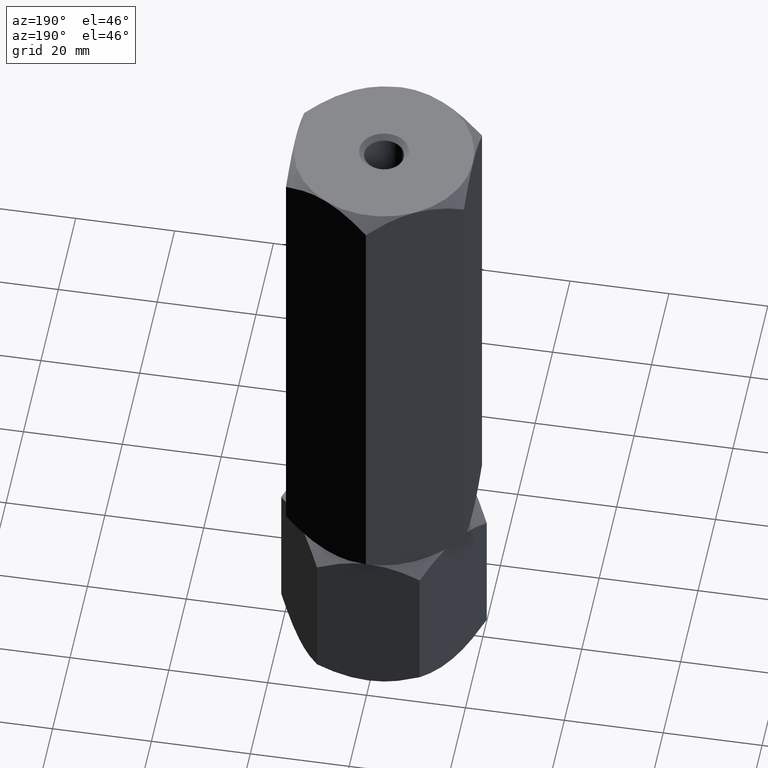
[diagram: clean part render]
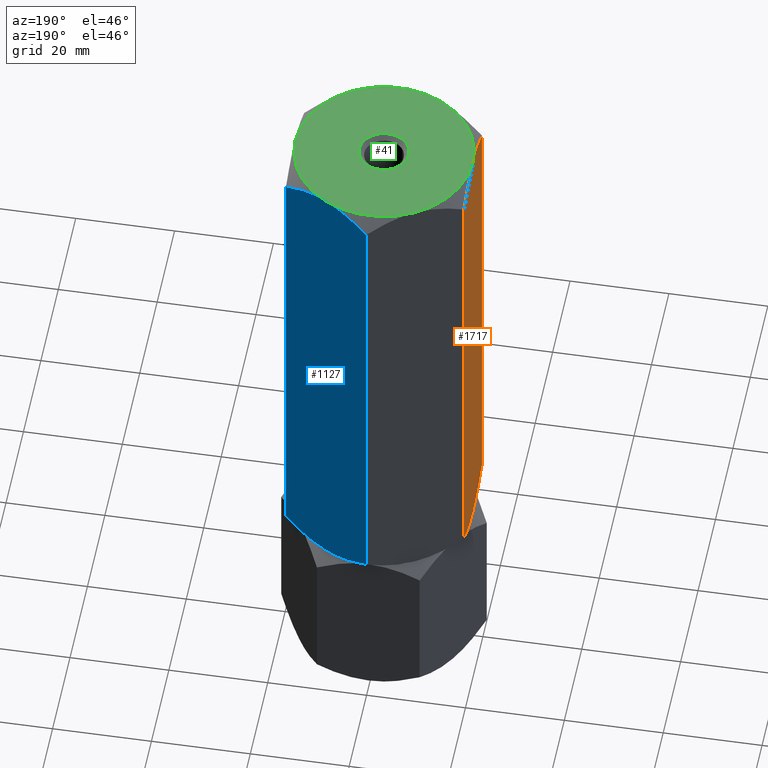
[diagram: same view with three faces highlighted in distinct colors, each labeled with its STEP entity id]
A machine part, auxiliary view with three faces highlighted in distinct colors.
Their STEP definitions:

[orange] entity #1717 — the highlighted planar face has unit normal (1, 0, -0).
#125 = FACE_OUTER_BOUND ( 'NONE', #1211, .T. ) ;
#163 = VERTEX_POINT ( 'NONE', #1197 ) ;
#224 = CARTESIAN_POINT ( 'NONE',  ( -18.00000000000000355, 10.39230484541327293, 130.5487236425067863 ) ) ;
#323 = ORIENTED_EDGE ( 'NONE', *, *, #771, .T. ) ;
#339 = CARTESIAN_POINT ( 'NONE',  ( -18.00000000000000711, -7.082707117959917476, 34.66128091149798252 ) ) ;
#425 = ORIENTED_EDGE ( 'NONE', *, *, #1598, .F. ) ;
#438 = VECTOR ( 'NONE', #577, 1000.000000000000000 ) ;
#452 = CARTESIAN_POINT ( 'NONE',  ( -18.00000000000000711, -6.223496946123841411, 132.2920538615294390 ) ) ;
#495 = CARTESIAN_POINT ( 'NONE',  ( -18.00000000000000355, -10.39230484541325872, 36.11794302415981406 ) ) ;
#521 = VERTEX_POINT ( 'NONE', #1832 ) ;
#570 = CARTESIAN_POINT ( 'NONE',  ( -18.00000000000000355, 8.778074610959544444, 35.31082790693295692 ) ) ;
#577 = DIRECTION ( 'NONE',  ( -0.000000000000000000, -0.000000000000000000, -1.000000000000000000 ) ) ;
#591 = ORIENTED_EDGE ( 'NONE', *, *, #673, .F. ) ;
#622 = DIRECTION ( 'NONE',  ( -0.000000000000000000, -0.000000000000000000, -1.000000000000000000 ) ) ;
#629 = CARTESIAN_POINT ( 'NONE',  ( -18.00000000000000711, -0.9043953770119721458, 33.35033129737433910 ) ) ;
#650 = LINE ( 'NONE', #784, #1639 ) ;
#673 = EDGE_CURVE ( 'NONE', #1443, #1810, #679, .T. ) ;
#677 = B_SPLINE_CURVE_WITH_KNOTS ( 'NONE', 3,
 ( #925, #1887, #1559, #2021, #2042, #1274, #1108, #1862, #452, #947, #1591, #1727, #1100, #2054 ),
 .UNSPECIFIED., .F., .F.,
 ( 4, 2, 2, 2, 2, 2, 4 ),
 ( 0.1384677957239335566, 0.1397979318438594964, 0.1411280679637854085, 0.1437883402036372604, 0.1451184763235632003, 0.1464486124434891123, 0.1491088846833409920 ),
 .UNSPECIFIED. ) ;
#679 = B_SPLINE_CURVE_WITH_KNOTS ( 'NONE', 3,
 ( #1712, #1723, #906, #918, #570, #1058 ),
 .UNSPECIFIED., .F., .F.,
 ( 4, 2, 4 ),
 ( 0.1107820986329206697, 0.1159835759449454468, 0.1211850532569702238 ),
 .UNSPECIFIED. ) ;
#699 = CARTESIAN_POINT ( 'NONE',  ( -18.00000000000000355, 4.475081985729232770, 132.8044625281006006 ) ) ;
#730 = B_SPLINE_CURVE_WITH_KNOTS ( 'NONE', 3,
 ( #495, #970, #1125, #1773, #2046, #339, #983, #1625, #795, #1594, #818, #629, #1280, #1911 ),
 .UNSPECIFIED., .F., .F.,
 ( 4, 2, 2, 2, 2, 2, 4 ),
 ( 0.1004087599824664279, 0.1017054273137732029, 0.1030020946450799918, 0.1055954293076935557, 0.1081887639703071058, 0.1094854313016138947, 0.1107820986329206697 ),
 .UNSPECIFIED. ) ;
#737 = PLANE ( 'NONE',  #1483 ) ;
#749 = CARTESIAN_POINT ( 'NONE',  ( -18.00000000000000355, 10.39230484541327293, 133.3333333333333144 ) ) ;
#771 = EDGE_CURVE ( 'NONE', #163, #1810, #650, .T. ) ;
#784 = CARTESIAN_POINT ( 'NONE',  ( -18.00000000000000355, 10.39230484541327293, 133.3333333333333144 ) ) ;
#795 = CARTESIAN_POINT ( 'NONE',  ( -18.00000000000000355, -3.613967831719413937, 33.67110738872835185 ) ) ;
#818 = CARTESIAN_POINT ( 'NONE',  ( -18.00000000000000355, -1.814095138421053077, 33.41883099885364317 ) ) ;
#855 = EDGE_CURVE ( 'NONE', #521, #1443, #730, .T. ) ;
#861 = CARTESIAN_POINT ( 'NONE',  ( -18.00000000000000711, 7.107311090567371537, 132.0542086361348879 ) ) ;
#880 = LINE ( 'NONE', #1203, #438 ) ;
#906 = CARTESIAN_POINT ( 'NONE',  ( -18.00000000000000711, 3.592318780390954647, 33.61070979931490399 ) ) ;
#918 = CARTESIAN_POINT ( 'NONE',  ( -18.00000000000000000, 7.109965447143206774, 34.61309850096016305 ) ) ;
#922 = DIRECTION ( 'NONE',  ( 1.000000000000000000, 0.000000000000000000, -0.000000000000000000 ) ) ;
#925 = CARTESIAN_POINT ( 'NONE',  ( -18.00000000000000000, 0.000000000000000000, 133.3333333333333144 ) ) ;
#947 = CARTESIAN_POINT ( 'NONE',  ( -17.99999999999999645, -7.080606646322093134, 131.9949414621132746 ) ) ;
#970 = CARTESIAN_POINT ( 'NONE',  ( -18.00000000000000355, -9.992749120313195732, 35.91816516160979234 ) ) ;
#983 = CARTESIAN_POINT ( 'NONE',  ( -18.00000000000000355, -6.228990999673021278, 34.36251136990549782 ) ) ;
#987 = B_SPLINE_CURVE_WITH_KNOTS ( 'NONE', 3,
 ( #224, #1068, #861, #699, #1196, #1357, #1525, #1679 ),
 .UNSPECIFIED., .F., .F.,
 ( 4, 2, 2, 4 ),
 ( 0.1278099879825815854, 0.1331388918532575572, 0.1358033437885955708, 0.1384677957239335566 ),
 .UNSPECIFIED. ) ;
#1058 = CARTESIAN_POINT ( 'NONE',  ( -18.00000000000000355, 10.39230484541327293, 36.11794302415982116 ) ) ;
#1068 = CARTESIAN_POINT ( 'NONE',  ( -18.00000000000000711, 8.774731520318134415, 131.3575103050543760 ) ) ;
#1100 = CARTESIAN_POINT ( 'NONE',  ( -18.00000000000000355, -9.589039146339997544, 130.9503564920434258 ) ) ;
#1108 = CARTESIAN_POINT ( 'NONE',  ( -18.00000000000000355, -4.489815314339048236, 132.8005018324903119 ) ) ;
#1125 = CARTESIAN_POINT ( 'NONE',  ( -18.00000000000000711, -9.587949197936595169, 35.72437761027130421 ) ) ;
#1141 = VERTEX_POINT ( 'NONE', #1499 ) ;
#1177 = ORIENTED_EDGE ( 'NONE', *, *, #1301, .F. ) ;
#1196 = CARTESIAN_POINT ( 'NONE',  ( -18.00000000000000711, 3.589319173232453863, 133.0001577798414019 ) ) ;
#1197 = CARTESIAN_POINT ( 'NONE',  ( -18.00000000000000355, 10.39230484541327293, 130.5487236425067863 ) ) ;
#1203 = CARTESIAN_POINT ( 'NONE',  ( -18.00000000000000355, -10.39230484541325872, 133.3333333333333144 ) ) ;
#1211 = EDGE_LOOP ( 'NONE', ( #1177, #323, #591, #1240, #1330, #425 ) ) ;
#1240 = ORIENTED_EDGE ( 'NONE', *, *, #855, .F. ) ;
#1242 = DIRECTION ( 'NONE',  ( -0.000000000000000000, 0.000000000000000000, -1.000000000000000000 ) ) ;
#1274 = CARTESIAN_POINT ( 'NONE',  ( -18.00000000000001066, -3.609709903701545208, 132.9962641319732768 ) ) ;
#1280 = CARTESIAN_POINT ( 'NONE',  ( -18.00000000000000711, -0.4513223419669447067, 33.33333333333329307 ) ) ;
#1301 = EDGE_CURVE ( 'NONE', #163, #1141, #987, .T. ) ;
#1330 = ORIENTED_EDGE ( 'NONE', *, *, #1529, .F. ) ;
#1357 = CARTESIAN_POINT ( 'NONE',  ( -18.00000000000000711, 1.805664286422173692, 133.2645055555531428 ) ) ;
#1443 = VERTEX_POINT ( 'NONE', #1476 ) ;
#1476 = CARTESIAN_POINT ( 'NONE',  ( -18.00000000000000355, 0.000000000000000000, 33.33333333333330017 ) ) ;
#1483 = AXIS2_PLACEMENT_3D ( 'NONE', #749, #922, #1242 ) ;
#1499 = CARTESIAN_POINT ( 'NONE',  ( -18.00000000000000000, 0.000000000000000000, 133.3333333333333144 ) ) ;
#1525 = CARTESIAN_POINT ( 'NONE',  ( -18.00000000000001066, 0.9067060642462314579, 133.3333333333333428 ) ) ;
#1529 = EDGE_CURVE ( 'NONE', #1735, #521, #880, .T. ) ;
#1556 = CARTESIAN_POINT ( 'NONE',  ( -18.00000000000000711, -10.39230484541325694, 130.5487236425067863 ) ) ;
#1559 = CARTESIAN_POINT ( 'NONE',  ( -18.00000000000000355, -0.9087126234396247781, 133.3161085293293411 ) ) ;
#1591 = CARTESIAN_POINT ( 'NONE',  ( -18.00000000000000355, -7.507490410494521704, 131.8342518833695181 ) ) ;
#1594 = CARTESIAN_POINT ( 'NONE',  ( -18.00000000000000711, -2.268365306453394847, 33.47027849005760913 ) ) ;
#1598 = EDGE_CURVE ( 'NONE', #1141, #1735, #677, .T. ) ;
#1601 = CARTESIAN_POINT ( 'NONE',  ( -18.00000000000000355, 10.39230484541327293, 36.11794302415982116 ) ) ;
#1625 = CARTESIAN_POINT ( 'NONE',  ( -18.00000000000000711, -4.494632227792643597, 33.86738326141610855 ) ) ;
#1639 = VECTOR ( 'NONE', #622, 1000.000000000000000 ) ;
#1679 = CARTESIAN_POINT ( 'NONE',  ( -18.00000000000000000, 0.000000000000000000, 133.3333333333333144 ) ) ;
#1712 = CARTESIAN_POINT ( 'NONE',  ( -18.00000000000000355, 0.000000000000000000, 33.33333333333330017 ) ) ;
#1717 = ADVANCED_FACE ( 'NONE', ( #125 ), #737, .F. ) ;
#1723 = CARTESIAN_POINT ( 'NONE',  ( -18.00000000000000355, 1.810443484980108986, 33.33333333333329307 ) ) ;
#1727 = CARTESIAN_POINT ( 'NONE',  ( -18.00000000000000355, -8.769604937885725704, 131.3255090817757207 ) ) ;
#1735 = VERTEX_POINT ( 'NONE', #1556 ) ;
#1773 = CARTESIAN_POINT ( 'NONE',  ( -18.00000000000000000, -8.765915541430075564, 35.35100532987971889 ) ) ;
#1810 = VERTEX_POINT ( 'NONE', #1601 ) ;
#1832 = CARTESIAN_POINT ( 'NONE',  ( -18.00000000000000355, -10.39230484541325872, 36.11794302415981406 ) ) ;
#1862 = CARTESIAN_POINT ( 'NONE',  ( -18.00000000000000711, -5.792286176018565769, 132.4289044973347131 ) ) ;
#1887 = CARTESIAN_POINT ( 'NONE',  ( -18.00000000000000355, -0.4526418623711488953, 133.3333333333333144 ) ) ;
#1911 = CARTESIAN_POINT ( 'NONE',  ( -18.00000000000000355, 0.000000000000000000, 33.33333333333330017 ) ) ;
#2021 = CARTESIAN_POINT ( 'NONE',  ( -18.00000000000000000, -1.817661187389374655, 133.2474680458177829 ) ) ;
#2042 = CARTESIAN_POINT ( 'NONE',  ( -18.00000000000000711, -2.268326247884222990, 133.1963592391387579 ) ) ;
#2046 = CARTESIAN_POINT ( 'NONE',  ( -18.00000000000000355, -8.347141026087349758, 35.17082227915909698 ) ) ;
#2054 = CARTESIAN_POINT ( 'NONE',  ( -18.00000000000000711, -10.39230484541325694, 130.5487236425067863 ) ) ;

[blue] entity #1127 — the highlighted planar face has unit normal (-0.5, -0.866, 0).
#25 = CARTESIAN_POINT ( 'NONE',  ( 18.00000000000000000, 10.39230484541326760, 133.3333333333333144 ) ) ;
#33 = CARTESIAN_POINT ( 'NONE',  ( 8.605874323383771340, 15.81600583360882517, 33.33333333333330017 ) ) ;
#34 = DIRECTION ( 'NONE',  ( -0.5000000000000001110, -0.8660254037844387076, 0.000000000000000000 ) ) ;
#42 = CARTESIAN_POINT ( 'NONE',  ( 8.209538469370123437, 16.04483044561310123, 33.35066618980737019 ) ) ;
#51 = CARTESIAN_POINT ( 'NONE',  ( 5.097327296964724752, 17.84166640377631907, 33.87041888916230903 ) ) ;
#60 = ORIENTED_EDGE ( 'NONE', *, *, #2055, .F. ) ;
#160 = CARTESIAN_POINT ( 'NONE',  ( 7.434539168300460688, 16.49227650070744033, 133.3333333333333144 ) ) ;
#177 = CARTESIAN_POINT ( 'NONE',  ( 18.00000000000000000, 10.39230484541326760, 133.3333333333333144 ) ) ;
#218 = CARTESIAN_POINT ( 'NONE',  ( 7.415748492146454929, 16.50312530264320898, 33.42028022345144933 ) ) ;
#249 = CARTESIAN_POINT ( 'NONE',  ( 9.000000000000000000, 15.58845726811989252, 133.3333333333333144 ) ) ;
#261 = B_SPLINE_CURVE_WITH_KNOTS ( 'NONE', 3,
 ( #662, #1311, #1944, #380, #1026, #1659 ),
 .UNSPECIFIED., .F., .F.,
 ( 4, 2, 4 ),
 ( 0.01077282027732747414, 0.01612137750481873813, 0.02146993473231000038 ),
 .UNSPECIFIED. ) ;
#380 = CARTESIAN_POINT ( 'NONE',  ( 15.13928418966203360, 12.04393988858690712, 34.60590803483753319 ) ) ;
#384 = CARTESIAN_POINT ( 'NONE',  ( 9.790461530629878339, 15.13208409062669269, 133.3160004768592160 ) ) ;
#391 = CARTESIAN_POINT ( 'NONE',  ( -1.925929944387235853E-30, 20.78460969082653165, 133.3333333333333144 ) ) ;
#407 = CARTESIAN_POINT ( 'NONE',  ( 12.14199022028320485, 13.77442836864822162, 132.9927702310780546 ) ) ;
#420 = VERTEX_POINT ( 'NONE', #750 ) ;
#479 = CARTESIAN_POINT ( 'NONE',  ( 2.860715810337968179, 19.13297464765287614, 132.0607586318291169 ) ) ;
#526 = EDGE_CURVE ( 'NONE', #1262, #804, #966, .T. ) ;
#530 = CARTESIAN_POINT ( 'NONE',  ( 10.58425150785354774, 14.67378923359657961, 133.2463864432151013 ) ) ;
#535 = VERTEX_POINT ( 'NONE', #975 ) ;
#618 = EDGE_CURVE ( 'NONE', #535, #420, #261, .T. ) ;
#662 = CARTESIAN_POINT ( 'NONE',  ( 9.000000000000001776, 15.58845726811989607, 33.33333333333330017 ) ) ;
#691 = CARTESIAN_POINT ( 'NONE',  ( 8.283054731729360895E-16, 20.78460969082653165, 36.11794302415982116 ) ) ;
#694 = ORIENTED_EDGE ( 'NONE', *, *, #526, .F. ) ;
#750 = CARTESIAN_POINT ( 'NONE',  ( 18.00000000000000000, 10.39230484541326760, 36.11794302415981406 ) ) ;
#751 = ORIENTED_EDGE ( 'NONE', *, *, #790, .T. ) ;
#790 = EDGE_CURVE ( 'NONE', #1430, #420, #962, .T. ) ;
#792 = ORIENTED_EDGE ( 'NONE', *, *, #1946, .F. ) ;
#804 = VERTEX_POINT ( 'NONE', #1898 ) ;
#807 = B_SPLINE_CURVE_WITH_KNOTS ( 'NONE', 3,
 ( #1342, #1970, #1812, #1981, #407, #1488, #530, #384, #1372, #249 ),
 .UNSPECIFIED., .F., .F.,
 ( 4, 2, 2, 2, 4 ),
 ( 2.544307986816325776E-07, 0.005386537354063073400, 0.008079678815695268135, 0.009426249546511368538, 0.01077282027732746721 ),
 .UNSPECIFIED. ) ;
#811 = DIRECTION ( 'NONE',  ( -0.000000000000000000, -0.000000000000000000, -1.000000000000000000 ) ) ;
#816 = DIRECTION ( 'NONE',  ( 0.8660254037844385966, -0.5000000000000000000, 0.000000000000000000 ) ) ;
#823 = CARTESIAN_POINT ( 'NONE',  ( 9.000000000000001776, 15.58845726811989607, 33.33333333333330017 ) ) ;
#840 = ORIENTED_EDGE ( 'NONE', *, *, #1665, .F. ) ;
#847 = FACE_OUTER_BOUND ( 'NONE', #1128, .T. ) ;
#957 = CARTESIAN_POINT ( 'NONE',  ( 5.895697476400526327, 17.38072716576608912, 133.0569374262117321 ) ) ;
#962 = LINE ( 'NONE', #177, #2031 ) ;
#966 = LINE ( 'NONE', #391, #1079 ) ;
#975 = CARTESIAN_POINT ( 'NONE',  ( 9.000000000000001776, 15.58845726811989607, 33.33333333333330017 ) ) ;
#1009 = CARTESIAN_POINT ( 'NONE',  ( 2.854601888853812941, 19.13650452186757178, 34.61071641122317288 ) ) ;
#1026 = CARTESIAN_POINT ( 'NONE',  ( 16.59030399953601531, 11.20619321075668751, 35.30405465881634797 ) ) ;
#1079 = VECTOR ( 'NONE', #1606, 1000.000000000000000 ) ;
#1127 = ADVANCED_FACE ( 'NONE', ( #847 ), #1973, .F. ) ;
#1128 = EDGE_LOOP ( 'NONE', ( #840, #751, #1533, #792, #694, #60 ) ) ;
#1262 = VERTEX_POINT ( 'NONE', #1366 ) ;
#1293 = CARTESIAN_POINT ( 'NONE',  ( 2.023902932232340556E-15, 20.78460969082653165, 130.5487236425067863 ) ) ;
#1311 = CARTESIAN_POINT ( 'NONE',  ( 10.56546083169953754, 14.68463803553235181, 33.33333333333330017 ) ) ;
#1342 = CARTESIAN_POINT ( 'NONE',  ( 18.00000000000000355, 10.39230484541326582, 130.5487236425067863 ) ) ;
#1345 = CARTESIAN_POINT ( 'NONE',  ( 1.411330396252046038, 19.96977770663491469, 35.30311103996820066 ) ) ;
#1366 = CARTESIAN_POINT ( 'NONE',  ( 2.023902932232340556E-15, 20.78460969082653165, 130.5487236425067863 ) ) ;
#1372 = CARTESIAN_POINT ( 'NONE',  ( 9.394125676616232212, 15.36090870263097052, 133.3333333333332860 ) ) ;
#1408 = CARTESIAN_POINT ( 'NONE',  ( 9.000000000000000000, 15.58845726811989252, 133.3333333333333144 ) ) ;
#1430 = VERTEX_POINT ( 'NONE', #1561 ) ;
#1454 = CARTESIAN_POINT ( 'NONE',  ( 1.409696000463994014, 19.97072132548310464, 131.3626120078502595 ) ) ;
#1488 = CARTESIAN_POINT ( 'NONE',  ( 10.97671975407795841, 14.44719758599053705, 133.1946107342347148 ) ) ;
#1533 = ORIENTED_EDGE ( 'NONE', *, *, #618, .F. ) ;
#1561 = CARTESIAN_POINT ( 'NONE',  ( 18.00000000000000355, 10.39230484541326582, 130.5487236425067863 ) ) ;
#1606 = DIRECTION ( 'NONE',  ( -0.000000000000000000, -0.000000000000000000, -1.000000000000000000 ) ) ;
#1654 = CARTESIAN_POINT ( 'NONE',  ( 5.858009779716801368, 17.40248616759157585, 33.67389643558856704 ) ) ;
#1659 = CARTESIAN_POINT ( 'NONE',  ( 18.00000000000000000, 10.39230484541326760, 36.11794302415981406 ) ) ;
#1665 = EDGE_CURVE ( 'NONE', #1430, #1899, #807, .T. ) ;
#1812 = CARTESIAN_POINT ( 'NONE',  ( 15.14539811114619106, 12.04041001437222569, 132.0559502554434346 ) ) ;
#1872 = AXIS2_PLACEMENT_3D ( 'NONE', #25, #34, #816 ) ;
#1898 = CARTESIAN_POINT ( 'NONE',  ( 8.283054731729360895E-16, 20.78460969082653165, 36.11794302415982116 ) ) ;
#1899 = VERTEX_POINT ( 'NONE', #1408 ) ;
#1902 = CARTESIAN_POINT ( 'NONE',  ( 9.000000000000000000, 15.58845726811989252, 133.3333333333333144 ) ) ;
#1932 = B_SPLINE_CURVE_WITH_KNOTS ( 'NONE', 3,
 ( #691, #1345, #1009, #51, #1654, #1945, #218, #42, #33, #823 ),
 .UNSPECIFIED., .F., .F.,
 ( 4, 2, 2, 2, 4 ),
 ( 2.544307986820942635E-07, 0.005386537354063077737, 0.008079678815695275074, 0.009426249546511375477, 0.01077282027732747414 ),
 .UNSPECIFIED. ) ;
#1944 = CARTESIAN_POINT ( 'NONE',  ( 12.10430252359948256, 13.79618737047370303, 33.60972924045488952 ) ) ;
#1945 = CARTESIAN_POINT ( 'NONE',  ( 7.023280245922047804, 16.72971695024925154, 33.47205593243187138 ) ) ;
#1946 = EDGE_CURVE ( 'NONE', #804, #535, #1932, .T. ) ;
#1970 = CARTESIAN_POINT ( 'NONE',  ( 16.58866960374796307, 11.20713682960488278, 131.3635556266983428 ) ) ;
#1973 = PLANE ( 'NONE',  #1872 ) ;
#1981 = CARTESIAN_POINT ( 'NONE',  ( 12.90267270303528235, 13.33524813246347129, 132.7962477775042771 ) ) ;
#2031 = VECTOR ( 'NONE', #811, 1000.000000000000000 ) ;
#2048 = B_SPLINE_CURVE_WITH_KNOTS ( 'NONE', 3,
 ( #1902, #160, #957, #479, #1454, #1293 ),
 .UNSPECIFIED., .F., .F.,
 ( 4, 2, 4 ),
 ( 0.01077282027732746721, 0.01612137750481873119, 0.02146993473230999344 ),
 .UNSPECIFIED. ) ;
#2055 = EDGE_CURVE ( 'NONE', #1899, #1262, #2048, .T. ) ;

[green] entity #41 — the highlighted planar face has unit normal (0, 0, 1).
#40 = ORIENTED_EDGE ( 'NONE', *, *, #1962, .T. ) ;
#41 = ADVANCED_FACE ( 'NONE', ( #496, #47 ), #1950, .T. ) ;
#47 = FACE_OUTER_BOUND ( 'NONE', #292, .T. ) ;
#75 = DIRECTION ( 'NONE',  ( 1.000000000000000000, 0.000000000000000000, 0.000000000000000000 ) ) ;
#146 = CARTESIAN_POINT ( 'NONE',  ( -4.999999999999990230, 6.123233995736754449E-16, 133.3333333333333144 ) ) ;
#157 = ORIENTED_EDGE ( 'NONE', *, *, #2013, .T. ) ;
#172 = AXIS2_PLACEMENT_3D ( 'NONE', #826, #366, #1326 ) ;
#183 = DIRECTION ( 'NONE',  ( -0.000000000000000000, -0.000000000000000000, -1.000000000000000000 ) ) ;
#205 = CIRCLE ( 'NONE', #701, 18.00000000000000000 ) ;
#206 = VERTEX_POINT ( 'NONE', #1579 ) ;
#235 = CIRCLE ( 'NONE', #403, 18.00000000000000000 ) ;
#242 = VERTEX_POINT ( 'NONE', #917 ) ;
#292 = EDGE_LOOP ( 'NONE', ( #157, #447, #710, #40, #392, #1834 ) ) ;
#319 = DIRECTION ( 'NONE',  ( 0.000000000000000000, 0.000000000000000000, 1.000000000000000000 ) ) ;
#335 = AXIS2_PLACEMENT_3D ( 'NONE', #1819, #348, #1023 ) ;
#348 = DIRECTION ( 'NONE',  ( 0.000000000000000000, 0.000000000000000000, 1.000000000000000000 ) ) ;
#363 = CIRCLE ( 'NONE', #1799, 4.999999999999990230 ) ;
#366 = DIRECTION ( 'NONE',  ( -0.000000000000000000, -0.000000000000000000, -1.000000000000000000 ) ) ;
#386 = CARTESIAN_POINT ( 'NONE',  ( 0.000000000000000000, 0.000000000000000000, 133.3333333333333144 ) ) ;
#392 = ORIENTED_EDGE ( 'NONE', *, *, #1017, .T. ) ;
#403 = AXIS2_PLACEMENT_3D ( 'NONE', #1609, #319, #1753 ) ;
#447 = ORIENTED_EDGE ( 'NONE', *, *, #715, .T. ) ;
#465 = ORIENTED_EDGE ( 'NONE', *, *, #779, .T. ) ;
#496 = FACE_BOUND ( 'NONE', #1032, .T. ) ;
#542 = DIRECTION ( 'NONE',  ( 1.000000000000000000, 0.000000000000000000, 0.000000000000000000 ) ) ;
#589 = DIRECTION ( 'NONE',  ( 1.000000000000000000, 0.000000000000000000, 0.000000000000000000 ) ) ;
#636 = CIRCLE ( 'NONE', #172, 4.999999999999990230 ) ;
#678 = VERTEX_POINT ( 'NONE', #1250 ) ;
#684 = EDGE_CURVE ( 'NONE', #1899, #1781, #1505, .T. ) ;
#686 = VERTEX_POINT ( 'NONE', #745 ) ;
#701 = AXIS2_PLACEMENT_3D ( 'NONE', #386, #1030, #75 ) ;
#710 = ORIENTED_EDGE ( 'NONE', *, *, #684, .T. ) ;
#715 = EDGE_CURVE ( 'NONE', #206, #1899, #869, .T. ) ;
#722 = DIRECTION ( 'NONE',  ( 0.000000000000000000, 0.000000000000000000, 1.000000000000000000 ) ) ;
#739 = DIRECTION ( 'NONE',  ( 0.000000000000000000, 0.000000000000000000, 1.000000000000000000 ) ) ;
#745 = CARTESIAN_POINT ( 'NONE',  ( 4.999999999999990230, 0.000000000000000000, 133.3333333333333144 ) ) ;
#779 = EDGE_CURVE ( 'NONE', #686, #841, #363, .T. ) ;
#826 = CARTESIAN_POINT ( 'NONE',  ( 0.000000000000000000, 0.000000000000000000, 133.3333333333333144 ) ) ;
#841 = VERTEX_POINT ( 'NONE', #146 ) ;
#869 = CIRCLE ( 'NONE', #2029, 18.00000000000000000 ) ;
#884 = EDGE_CURVE ( 'NONE', #678, #242, #1742, .T. ) ;
#913 = EDGE_CURVE ( 'NONE', #841, #686, #636, .T. ) ;
#917 = CARTESIAN_POINT ( 'NONE',  ( 8.999999999999994671, -15.58845726811989785, 133.3333333333333144 ) ) ;
#929 = CARTESIAN_POINT ( 'NONE',  ( 0.000000000000000000, 0.000000000000000000, 133.3333333333333144 ) ) ;
#1017 = EDGE_CURVE ( 'NONE', #1141, #678, #235, .T. ) ;
#1023 = DIRECTION ( 'NONE',  ( 1.000000000000000000, 0.000000000000000000, 0.000000000000000000 ) ) ;
#1030 = DIRECTION ( 'NONE',  ( 0.000000000000000000, 0.000000000000000000, 1.000000000000000000 ) ) ;
#1032 = EDGE_LOOP ( 'NONE', ( #465, #1090 ) ) ;
#1090 = ORIENTED_EDGE ( 'NONE', *, *, #913, .T. ) ;
#1141 = VERTEX_POINT ( 'NONE', #1499 ) ;
#1208 = AXIS2_PLACEMENT_3D ( 'NONE', #1396, #2014, #589 ) ;
#1250 = CARTESIAN_POINT ( 'NONE',  ( -9.000000000000003553, -15.58845726811989074, 133.3333333333333144 ) ) ;
#1326 = DIRECTION ( 'NONE',  ( 1.000000000000000000, 0.000000000000000000, 0.000000000000000000 ) ) ;
#1375 = CARTESIAN_POINT ( 'NONE',  ( 0.000000000000000000, 0.000000000000000000, 133.3333333333333144 ) ) ;
#1396 = CARTESIAN_POINT ( 'NONE',  ( 0.000000000000000000, 0.000000000000000000, 133.3333333333333144 ) ) ;
#1408 = CARTESIAN_POINT ( 'NONE',  ( 9.000000000000000000, 15.58845726811989252, 133.3333333333333144 ) ) ;
#1436 = CARTESIAN_POINT ( 'NONE',  ( 0.000000000000000000, 0.000000000000000000, 133.3333333333333144 ) ) ;
#1499 = CARTESIAN_POINT ( 'NONE',  ( -18.00000000000000000, 0.000000000000000000, 133.3333333333333144 ) ) ;
#1505 = CIRCLE ( 'NONE', #1208, 18.00000000000000000 ) ;
#1570 = DIRECTION ( 'NONE',  ( 1.000000000000000000, 0.000000000000000000, 0.000000000000000000 ) ) ;
#1579 = CARTESIAN_POINT ( 'NONE',  ( 18.00000000000000000, 3.004629197474316879E-15, 133.3333333333333144 ) ) ;
#1585 = CIRCLE ( 'NONE', #1877, 18.00000000000000000 ) ;
#1609 = CARTESIAN_POINT ( 'NONE',  ( 0.000000000000000000, 0.000000000000000000, 133.3333333333333144 ) ) ;
#1622 = CARTESIAN_POINT ( 'NONE',  ( -8.999999999999998224, 15.58845726811990318, 133.3333333333333144 ) ) ;
#1738 = AXIS2_PLACEMENT_3D ( 'NONE', #1956, #1940, #1789 ) ;
#1742 = CIRCLE ( 'NONE', #335, 18.00000000000000000 ) ;
#1753 = DIRECTION ( 'NONE',  ( 1.000000000000000000, 0.000000000000000000, 0.000000000000000000 ) ) ;
#1781 = VERTEX_POINT ( 'NONE', #1622 ) ;
#1789 = DIRECTION ( 'NONE',  ( 1.000000000000000000, 0.000000000000000000, -0.000000000000000000 ) ) ;
#1799 = AXIS2_PLACEMENT_3D ( 'NONE', #1436, #183, #1891 ) ;
#1819 = CARTESIAN_POINT ( 'NONE',  ( 0.000000000000000000, 0.000000000000000000, 133.3333333333333144 ) ) ;
#1834 = ORIENTED_EDGE ( 'NONE', *, *, #884, .T. ) ;
#1877 = AXIS2_PLACEMENT_3D ( 'NONE', #1375, #739, #542 ) ;
#1891 = DIRECTION ( 'NONE',  ( 1.000000000000000000, 0.000000000000000000, 0.000000000000000000 ) ) ;
#1899 = VERTEX_POINT ( 'NONE', #1408 ) ;
#1940 = DIRECTION ( 'NONE',  ( 0.000000000000000000, 0.000000000000000000, 1.000000000000000000 ) ) ;
#1950 = PLANE ( 'NONE',  #1738 ) ;
#1956 = CARTESIAN_POINT ( 'NONE',  ( 0.000000000000000000, 0.000000000000000000, 133.3333333333333144 ) ) ;
#1962 = EDGE_CURVE ( 'NONE', #1781, #1141, #205, .T. ) ;
#2013 = EDGE_CURVE ( 'NONE', #242, #206, #1585, .T. ) ;
#2014 = DIRECTION ( 'NONE',  ( 0.000000000000000000, 0.000000000000000000, 1.000000000000000000 ) ) ;
#2029 = AXIS2_PLACEMENT_3D ( 'NONE', #929, #722, #1570 ) ;